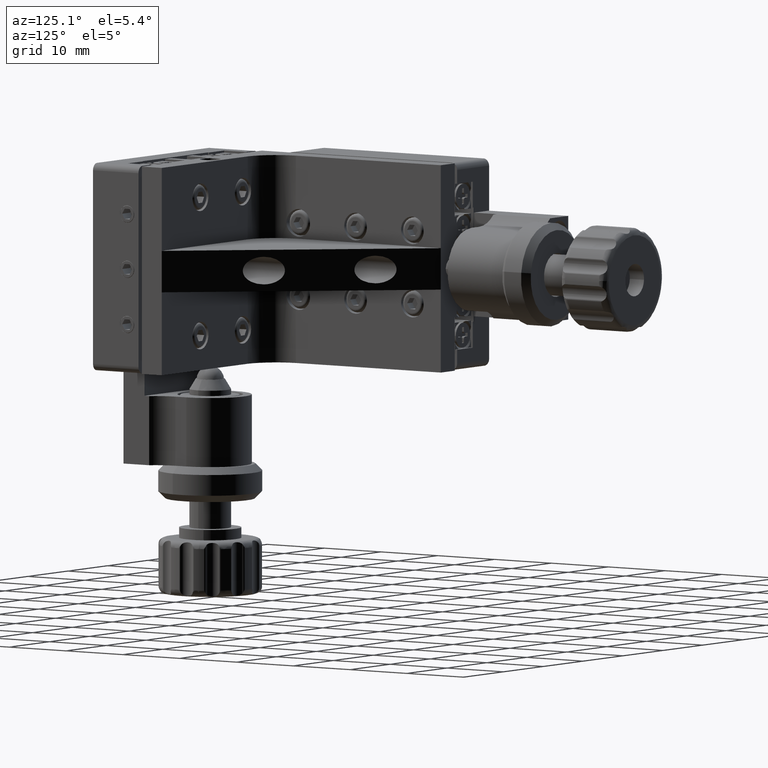
[diagram: clean part render]
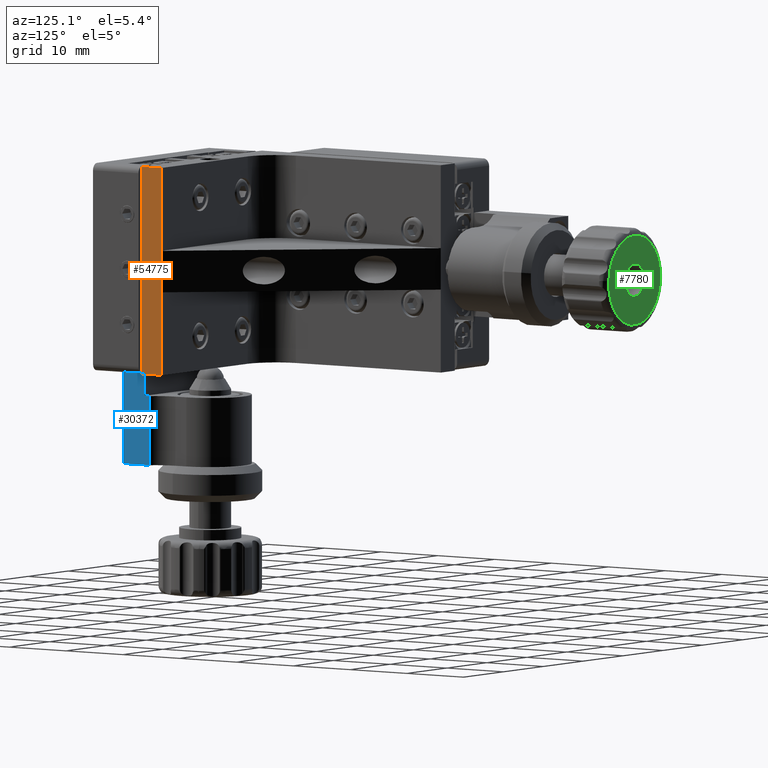
[diagram: same view with three faces highlighted in distinct colors, each labeled with its STEP entity id]
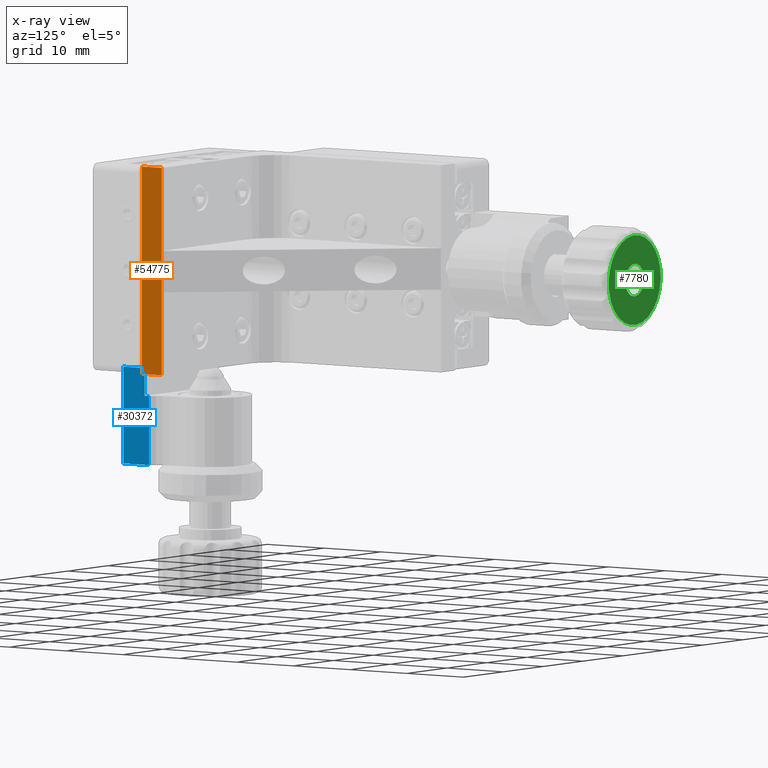
[diagram: x-ray of the same camera — body ghosted, the three highlighted faces saturated]
A machine part, auxiliary view with three faces highlighted in distinct colors.
The next image is the same camera in x-ray (body ghosted, the three faces saturated) — at least one of them is partly hidden behind the body in this view.
Their STEP definitions:

[orange] entity #54775 — the highlighted planar face has unit normal (1, 0, -0).
#577 = VECTOR ( 'NONE', #28762, 1000.000000000000000 ) ;
#2600 = LINE ( 'NONE', #29309, #55265 ) ;
#3160 = ORIENTED_EDGE ( 'NONE', *, *, #45497, .T. ) ;
#4359 = DIRECTION ( 'NONE',  ( 0.0000000000000000000, 0.0000000000000000000, 1.000000000000000000 ) ) ;
#5450 = PLANE ( 'NONE',  #13955 ) ;
#6402 = VERTEX_POINT ( 'NONE', #44178 ) ;
#7604 = LINE ( 'NONE', #41709, #28193 ) ;
#9952 = CARTESIAN_POINT ( 'NONE',  ( 34.00000000000000700, 7.500000000000000900, 15.00000000000000000 ) ) ;
#10191 = ORIENTED_EDGE ( 'NONE', *, *, #34158, .T. ) ;
#10743 = LINE ( 'NONE', #17728, #55894 ) ;
#11677 = FACE_OUTER_BOUND ( 'NONE', #44558, .T. ) ;
#13322 = ORIENTED_EDGE ( 'NONE', *, *, #36570, .T. ) ;
#13955 = AXIS2_PLACEMENT_3D ( 'NONE', #35495, #18066, #27467 ) ;
#16355 = VECTOR ( 'NONE', #39545, 1000.000000000000000 ) ;
#17728 = CARTESIAN_POINT ( 'NONE',  ( 34.00000000000000700, 7.500000000000000900, -3.000000000000000000 ) ) ;
#18066 = DIRECTION ( 'NONE',  ( 1.000000000000000000, 0.0000000000000000000, -0.0000000000000000000 ) ) ;
#18487 = DIRECTION ( 'NONE',  ( 0.0000000000000000000, 0.0000000000000000000, 1.000000000000000000 ) ) ;
#19188 = CARTESIAN_POINT ( 'NONE',  ( 34.00000000000000700, 3.999999999999996400, -15.00000000000000000 ) ) ;
#24137 = CARTESIAN_POINT ( 'NONE',  ( 34.00000000000000700, 7.500000000000000900, -3.000000000000000000 ) ) ;
#26281 = VERTEX_POINT ( 'NONE', #9952 ) ;
#26918 = VECTOR ( 'NONE', #18487, 1000.000000000000000 ) ;
#27090 = VERTEX_POINT ( 'NONE', #19188 ) ;
#27467 = DIRECTION ( 'NONE',  ( -0.0000000000000000000, 0.0000000000000000000, -1.000000000000000000 ) ) ;
#28129 = EDGE_CURVE ( 'NONE', #27090, #29415, #29639, .T. ) ;
#28193 = VECTOR ( 'NONE', #54302, 1000.000000000000000 ) ;
#28762 = DIRECTION ( 'NONE',  ( 0.0000000000000000000, 0.0000000000000000000, 1.000000000000000000 ) ) ;
#28827 = VERTEX_POINT ( 'NONE', #56493 ) ;
#29270 = VERTEX_POINT ( 'NONE', #24137 ) ;
#29309 = CARTESIAN_POINT ( 'NONE',  ( 34.00000000000000700, 7.500000000000000900, 15.00000000000000000 ) ) ;
#29415 = VERTEX_POINT ( 'NONE', #43598 ) ;
#29639 = LINE ( 'NONE', #35718, #26918 ) ;
#34158 = EDGE_CURVE ( 'NONE', #27090, #28827, #7604, .T. ) ;
#35127 = CARTESIAN_POINT ( 'NONE',  ( 34.00000000000000700, 7.500000000000000900, -15.00000000000000000 ) ) ;
#35495 = CARTESIAN_POINT ( 'NONE',  ( 34.00000000000000700, 7.500000000000000900, -15.00000000000000000 ) ) ;
#35718 = CARTESIAN_POINT ( 'NONE',  ( 34.00000000000000700, 3.999999999999996400, -15.00000000000000000 ) ) ;
#36570 = EDGE_CURVE ( 'NONE', #29270, #6402, #10743, .T. ) ;
#39545 = DIRECTION ( 'NONE',  ( 0.0000000000000000000, 0.0000000000000000000, 1.000000000000000000 ) ) ;
#41709 = CARTESIAN_POINT ( 'NONE',  ( 34.00000000000000700, 7.500000000000000900, -15.00000000000000000 ) ) ;
#43595 = ORIENTED_EDGE ( 'NONE', *, *, #45423, .F. ) ;
#43598 = CARTESIAN_POINT ( 'NONE',  ( 34.00000000000000700, 3.999999999999996400, 15.00000000000000000 ) ) ;
#44178 = CARTESIAN_POINT ( 'NONE',  ( 34.00000000000000700, 7.500000000000000900, 3.000000000000000000 ) ) ;
#44558 = EDGE_LOOP ( 'NONE', ( #53131, #10191, #49018, #13322, #3160, #43595 ) ) ;
#44711 = EDGE_CURVE ( 'NONE', #28827, #29270, #52697, .T. ) ;
#45423 = EDGE_CURVE ( 'NONE', #29415, #26281, #2600, .T. ) ;
#45497 = EDGE_CURVE ( 'NONE', #6402, #26281, #54608, .T. ) ;
#46128 = DIRECTION ( 'NONE',  ( -0.0000000000000000000, 1.000000000000000000, -0.0000000000000000000 ) ) ;
#49018 = ORIENTED_EDGE ( 'NONE', *, *, #44711, .T. ) ;
#52697 = LINE ( 'NONE', #35127, #16355 ) ;
#53131 = ORIENTED_EDGE ( 'NONE', *, *, #28129, .F. ) ;
#54302 = DIRECTION ( 'NONE',  ( -0.0000000000000000000, 1.000000000000000000, -0.0000000000000000000 ) ) ;
#54608 = LINE ( 'NONE', #54718, #577 ) ;
#54718 = CARTESIAN_POINT ( 'NONE',  ( 34.00000000000000700, 7.500000000000000900, -15.00000000000000000 ) ) ;
#54775 = ADVANCED_FACE ( 'NONE', ( #11677 ), #5450, .T. ) ;
#55265 = VECTOR ( 'NONE', #46128, 1000.000000000000000 ) ;
#55894 = VECTOR ( 'NONE', #4359, 1000.000000000000000 ) ;
#56493 = CARTESIAN_POINT ( 'NONE',  ( 34.00000000000000700, 7.500000000000000900, -15.00000000000000000 ) ) ;

[blue] entity #30372 — the highlighted planar face has unit normal (-1, -0, 0).
#105 = LINE ( 'NONE', #51543, #44651 ) ;
#279 = EDGE_CURVE ( 'NONE', #5529, #3058, #39874, .T. ) ;
#792 = ORIENTED_EDGE ( 'NONE', *, *, #24245, .F. ) ;
#1083 = CARTESIAN_POINT ( 'NONE',  ( 26.50000000000002500, -0.8000000000000229200, -15.00000000000000700 ) ) ;
#1135 = EDGE_LOOP ( 'NONE', ( #21483, #10408, #792, #18659, #43694, #22289 ) ) ;
#3058 = VERTEX_POINT ( 'NONE', #48116 ) ;
#3948 = DIRECTION ( 'NONE',  ( 1.232595164407830900E-031, -7.511126783110220900E-032, 1.000000000000000000 ) ) ;
#4815 = DIRECTION ( 'NONE',  ( 1.232595164407830900E-031, -7.511126783110220900E-032, 1.000000000000000000 ) ) ;
#4947 = VERTEX_POINT ( 'NONE', #29843 ) ;
#5529 = VERTEX_POINT ( 'NONE', #47623 ) ;
#5912 = LINE ( 'NONE', #25716, #48324 ) ;
#10408 = ORIENTED_EDGE ( 'NONE', *, *, #32875, .T. ) ;
#10737 = LINE ( 'NONE', #28984, #18262 ) ;
#11009 = DIRECTION ( 'NONE',  ( -1.232595164407830900E-031, 7.511126783110220900E-032, -1.000000000000000000 ) ) ;
#15565 = CARTESIAN_POINT ( 'NONE',  ( 26.50000000000002500, -2.602085213965210600E-014, -15.00000000000000700 ) ) ;
#16291 = DIRECTION ( 'NONE',  ( 0.0000000000000000000, 1.000000000000000000, -7.511126783110222000E-032 ) ) ;
#18262 = VECTOR ( 'NONE', #20543, 1000.000000000000000 ) ;
#18659 = ORIENTED_EDGE ( 'NONE', *, *, #279, .T. ) ;
#18803 = CARTESIAN_POINT ( 'NONE',  ( 26.50000000000002500, -0.8000000000000229200, -19.00000000000000400 ) ) ;
#19820 = CARTESIAN_POINT ( 'NONE',  ( 26.50000000000002500, -4.500000000000023100, -15.00000000000000700 ) ) ;
#20309 = VERTEX_POINT ( 'NONE', #1083 ) ;
#20543 = DIRECTION ( 'NONE',  ( 0.0000000000000000000, 1.000000000000000000, -7.511126783110219800E-032 ) ) ;
#21483 = ORIENTED_EDGE ( 'NONE', *, *, #51097, .F. ) ;
#22289 = ORIENTED_EDGE ( 'NONE', *, *, #28380, .F. ) ;
#24245 = EDGE_CURVE ( 'NONE', #5529, #20309, #105, .T. ) ;
#25577 = CARTESIAN_POINT ( 'NONE',  ( 26.50000000000002500, -0.8000000000000229200, -19.00000000000000400 ) ) ;
#25716 = CARTESIAN_POINT ( 'NONE',  ( 26.50000000000002500, -0.8000000000000229200, -19.00000000000000400 ) ) ;
#28380 = EDGE_CURVE ( 'NONE', #4947, #42496, #41213, .T. ) ;
#28984 = CARTESIAN_POINT ( 'NONE',  ( 26.50000000000002500, -4.500000000000023100, -29.00000000000000400 ) ) ;
#29843 = CARTESIAN_POINT ( 'NONE',  ( 26.50000000000002500, -2.602085213965210600E-014, -19.00000000000000400 ) ) ;
#30372 = ADVANCED_FACE ( 'NONE', ( #50569 ), #30672, .F. ) ;
#30672 = PLANE ( 'NONE',  #56218 ) ;
#32875 = EDGE_CURVE ( 'NONE', #40410, #20309, #51325, .T. ) ;
#33007 = DIRECTION ( 'NONE',  ( -1.232595164407830900E-031, 7.511126783110220900E-032, -1.000000000000000000 ) ) ;
#36428 = VECTOR ( 'NONE', #33007, 1000.000000000000000 ) ;
#38513 = DIRECTION ( 'NONE',  ( 0.0000000000000000000, 1.000000000000000000, -7.511126783110219800E-032 ) ) ;
#39428 = CARTESIAN_POINT ( 'NONE',  ( 26.50000000000002500, -4.500000000000023100, -15.00000000000000700 ) ) ;
#39874 = LINE ( 'NONE', #19820, #52143 ) ;
#40410 = VERTEX_POINT ( 'NONE', #18803 ) ;
#41213 = LINE ( 'NONE', #15565, #36428 ) ;
#42496 = VERTEX_POINT ( 'NONE', #43071 ) ;
#43071 = CARTESIAN_POINT ( 'NONE',  ( 26.50000000000002500, -2.602085213965210600E-014, -29.00000000000000400 ) ) ;
#43694 = ORIENTED_EDGE ( 'NONE', *, *, #50919, .T. ) ;
#44480 = VECTOR ( 'NONE', #3948, 1000.000000000000000 ) ;
#44651 = VECTOR ( 'NONE', #38513, 1000.000000000000000 ) ;
#47623 = CARTESIAN_POINT ( 'NONE',  ( 26.50000000000002500, -4.500000000000023100, -15.00000000000000700 ) ) ;
#48116 = CARTESIAN_POINT ( 'NONE',  ( 26.50000000000002500, -4.500000000000023100, -29.00000000000000400 ) ) ;
#48324 = VECTOR ( 'NONE', #16291, 1000.000000000000000 ) ;
#48442 = DIRECTION ( 'NONE',  ( -1.000000000000000000, -1.851635710423161000E-062, 1.232595164407830900E-031 ) ) ;
#50569 = FACE_OUTER_BOUND ( 'NONE', #1135, .T. ) ;
#50919 = EDGE_CURVE ( 'NONE', #3058, #42496, #10737, .T. ) ;
#51097 = EDGE_CURVE ( 'NONE', #40410, #4947, #5912, .T. ) ;
#51325 = LINE ( 'NONE', #25577, #44480 ) ;
#51543 = CARTESIAN_POINT ( 'NONE',  ( 26.50000000000002500, -4.500000000000023100, -15.00000000000000700 ) ) ;
#52143 = VECTOR ( 'NONE', #11009, 1000.000000000000000 ) ;
#56218 = AXIS2_PLACEMENT_3D ( 'NONE', #39428, #48442, #4815 ) ;

[green] entity #7780 — the highlighted planar face has unit normal (-0, 1, 0).
#1816 = CARTESIAN_POINT ( 'NONE',  ( -0.9894492702116541900, 70.72923949807299900, -0.3702001747019952900 ) ) ;
#3834 = AXIS2_PLACEMENT_3D ( 'NONE', #47866, #17408, #52259 ) ;
#6399 = CARTESIAN_POINT ( 'NONE',  ( 5.500000000000003600, 70.72923949807298500, -5.256212132209726300E-015 ) ) ;
#7780 = ADVANCED_FACE ( 'NONE', ( #27155, #51778 ), #9021, .T. ) ;
#9021 = PLANE ( 'NONE',  #42945 ) ;
#10790 = VERTEX_POINT ( 'NONE', #1816 ) ;
#10985 = DIRECTION ( 'NONE',  ( 0.0000000000000000000, 1.000000000000000000, 0.0000000000000000000 ) ) ;
#11681 = ORIENTED_EDGE ( 'NONE', *, *, #49060, .T. ) ;
#13196 = CARTESIAN_POINT ( 'NONE',  ( 5.500000000000003600, 70.72923949807298500, -5.256212132209726300E-015 ) ) ;
#13422 = CARTESIAN_POINT ( 'NONE',  ( 3.153814494615788400, 70.72923949807298500, -0.1338416016230324400 ) ) ;
#14217 = EDGE_CURVE ( 'NONE', #20127, #16693, #41688, .T. ) ;
#14233 = CIRCLE ( 'NONE', #53523, 6.500000000000000900 ) ;
#14389 = DIRECTION ( 'NONE',  ( 0.9983768108017934100, 0.0000000000000000000, 0.05695387303107526300 ) ) ;
#15360 = DIRECTION ( 'NONE',  ( 0.9983768108017934100, 0.0000000000000000000, 0.05695387303107529000 ) ) ;
#16693 = VERTEX_POINT ( 'NONE', #13422 ) ;
#17408 = DIRECTION ( 'NONE',  ( 0.0000000000000000000, 1.000000000000000000, 0.0000000000000000000 ) ) ;
#19113 = CARTESIAN_POINT ( 'NONE',  ( 5.500000000000003600, 70.72923949807298500, -5.256212132209726300E-015 ) ) ;
#20127 = VERTEX_POINT ( 'NONE', #55989 ) ;
#22418 = DIRECTION ( 'NONE',  ( 0.9983768108017935200, 0.0000000000000000000, 0.05695387303107528300 ) ) ;
#27155 = FACE_BOUND ( 'NONE', #43528, .T. ) ;
#28820 = ORIENTED_EDGE ( 'NONE', *, *, #45358, .T. ) ;
#32561 = DIRECTION ( 'NONE',  ( 0.0000000000000000000, 1.000000000000000000, 0.0000000000000000000 ) ) ;
#36063 = ORIENTED_EDGE ( 'NONE', *, *, #41420, .F. ) ;
#36525 = DIRECTION ( 'NONE',  ( 0.0000000000000000000, 1.000000000000000000, 0.0000000000000000000 ) ) ;
#36706 = VERTEX_POINT ( 'NONE', #43772 ) ;
#40805 = CIRCLE ( 'NONE', #3834, 6.500000000000000900 ) ;
#41195 = CARTESIAN_POINT ( 'NONE',  ( 5.500000000000003600, 70.72923949807298500, -5.256212132209726300E-015 ) ) ;
#41420 = EDGE_CURVE ( 'NONE', #16693, #20127, #42266, .T. ) ;
#41688 = CIRCLE ( 'NONE', #51245, 2.349999999999999600 ) ;
#42266 = CIRCLE ( 'NONE', #45351, 2.349999999999999600 ) ;
#42945 = AXIS2_PLACEMENT_3D ( 'NONE', #13196, #52821, #22418 ) ;
#43528 = EDGE_LOOP ( 'NONE', ( #46104, #36063 ) ) ;
#43772 = CARTESIAN_POINT ( 'NONE',  ( 11.98944927021166200, 70.72923949807299900, 0.3702001747019840200 ) ) ;
#44597 = DIRECTION ( 'NONE',  ( 0.9983768108017934100, 0.0000000000000000000, 0.05695387303107529000 ) ) ;
#45351 = AXIS2_PLACEMENT_3D ( 'NONE', #19113, #36525, #44597 ) ;
#45358 = EDGE_CURVE ( 'NONE', #36706, #10790, #14233, .T. ) ;
#46104 = ORIENTED_EDGE ( 'NONE', *, *, #14217, .F. ) ;
#47866 = CARTESIAN_POINT ( 'NONE',  ( 5.500000000000003600, 70.72923949807298500, -5.256212132209726300E-015 ) ) ;
#49060 = EDGE_CURVE ( 'NONE', #10790, #36706, #40805, .T. ) ;
#51245 = AXIS2_PLACEMENT_3D ( 'NONE', #6399, #10985, #15360 ) ;
#51778 = FACE_OUTER_BOUND ( 'NONE', #52477, .T. ) ;
#52259 = DIRECTION ( 'NONE',  ( 0.9983768108017934100, 0.0000000000000000000, 0.05695387303107526300 ) ) ;
#52477 = EDGE_LOOP ( 'NONE', ( #28820, #11681 ) ) ;
#52821 = DIRECTION ( 'NONE',  ( -0.0000000000000000000, 1.000000000000000000, 0.0000000000000000000 ) ) ;
#53523 = AXIS2_PLACEMENT_3D ( 'NONE', #41195, #32561, #14389 ) ;
#55989 = CARTESIAN_POINT ( 'NONE',  ( 7.846185505384217300, 70.72923949807298500, 0.1338416016230216700 ) ) ;